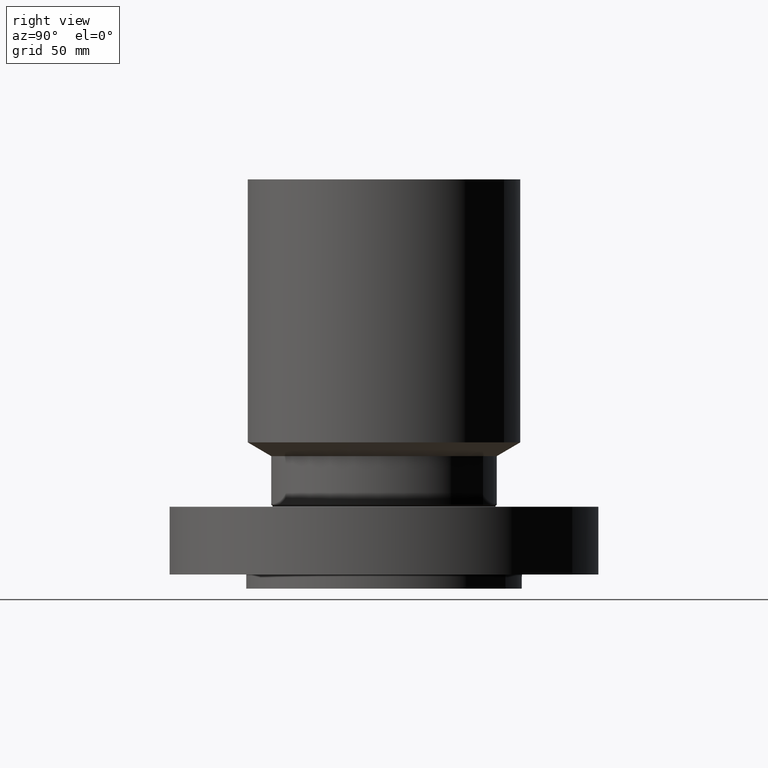
[diagram: clean part render]
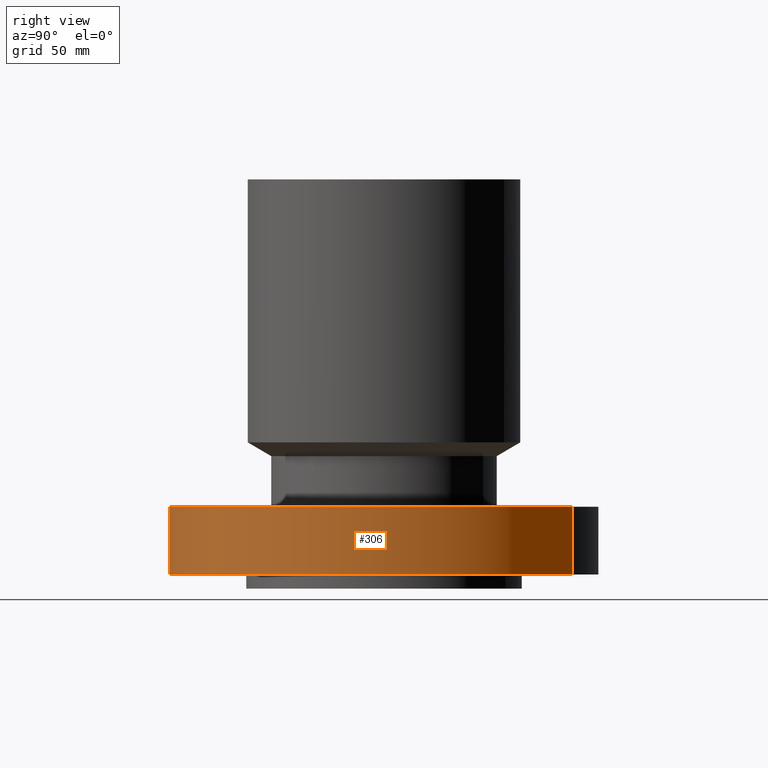
[diagram: same view with one face highlighted and labeled with its STEP entity id]
A machine part, right view. The second image highlights one B-rep face of the part: STEP entity #306.
In plain terms, the highlighted cylindrical surface (partial cylindrical patch) has radius 120.65 mm, axis along (0, 0, -1).
Its self-contained STEP definition (entity closure, byte-faithful):
#91=AXIS2_PLACEMENT_3D('Circle Axis2P3D',#89,#90,$) ;
#267=AXIS2_PLACEMENT_3D('Cylinder Axis2P3D',#264,#265,#266) ;
#297=AXIS2_PLACEMENT_3D('Circle Axis2P3D',#295,#296,$) ;
#84=CARTESIAN_POINT('Vertex',(-2.27727130838,-4.168517169,5.59482469102E-016)) ;
#86=CARTESIAN_POINT('Vertex',(2.27727130838,4.168517169,5.59482469102E-016)) ;
#89=CARTESIAN_POINT('Axis2P3D Location',(0.,0.,0.)) ;
#264=CARTESIAN_POINT('Axis2P3D Location',(0.,0.,4.21850000002)) ;
#269=CARTESIAN_POINT('Line Origine',(-2.27727130838,-4.168517169,0.750000000003)) ;
#273=CARTESIAN_POINT('Vertex',(-2.27727130838,-4.168517169,1.50000000001)) ;
#280=CARTESIAN_POINT('Vertex',(2.27727130838,4.168517169,1.50000000001)) ;
#283=CARTESIAN_POINT('Line Origine',(2.27727130838,4.168517169,0.750000000003)) ;
#295=CARTESIAN_POINT('Axis2P3D Location',(0.,0.,1.50000000001)) ;
#90=DIRECTION('Axis2P3D Direction',(0.,0.,-0.0393700787402)) ;
#265=DIRECTION('Axis2P3D Direction',(0.,0.,-0.0393700787402)) ;
#266=DIRECTION('Axis2P3D XDirection',(0.0188750212049,0.0345504945626,0.)) ;
#270=DIRECTION('Vector Direction',(0.,0.,-0.0393700787402)) ;
#284=DIRECTION('Vector Direction',(0.,0.,-0.0393700787402)) ;
#296=DIRECTION('Axis2P3D Direction',(0.,0.,-0.0393700787402)) ;
#271=VECTOR('Line Direction',#270,0.0393700787402) ;
#285=VECTOR('Line Direction',#284,0.0393700787402) ;
#301=ORIENTED_EDGE('',*,*,#93,.F.) ;
#302=ORIENTED_EDGE('',*,*,#287,.T.) ;
#303=ORIENTED_EDGE('',*,*,#299,.T.) ;
#304=ORIENTED_EDGE('',*,*,#275,.F.) ;
#306=ADVANCED_FACE('PartBody',(#305),#268,.T.) ;
#92=CIRCLE('generated circle',#91,4.75000000002) ;
#298=CIRCLE('generated circle',#297,4.75000000002) ;
#268=CYLINDRICAL_SURFACE('generated cylinder',#267,4.75000000002) ;
#93=EDGE_CURVE('',#87,#85,#92,.T.) ;
#275=EDGE_CURVE('',#85,#274,#272,.F.) ;
#287=EDGE_CURVE('',#87,#281,#286,.F.) ;
#299=EDGE_CURVE('',#281,#274,#298,.T.) ;
#300=EDGE_LOOP('',(#301,#302,#303,#304)) ;
#305=FACE_OUTER_BOUND('',#300,.T.) ;
#272=LINE('Line',#269,#271) ;
#286=LINE('Line',#283,#285) ;
#85=VERTEX_POINT('',#84) ;
#87=VERTEX_POINT('',#86) ;
#274=VERTEX_POINT('',#273) ;
#281=VERTEX_POINT('',#280) ;